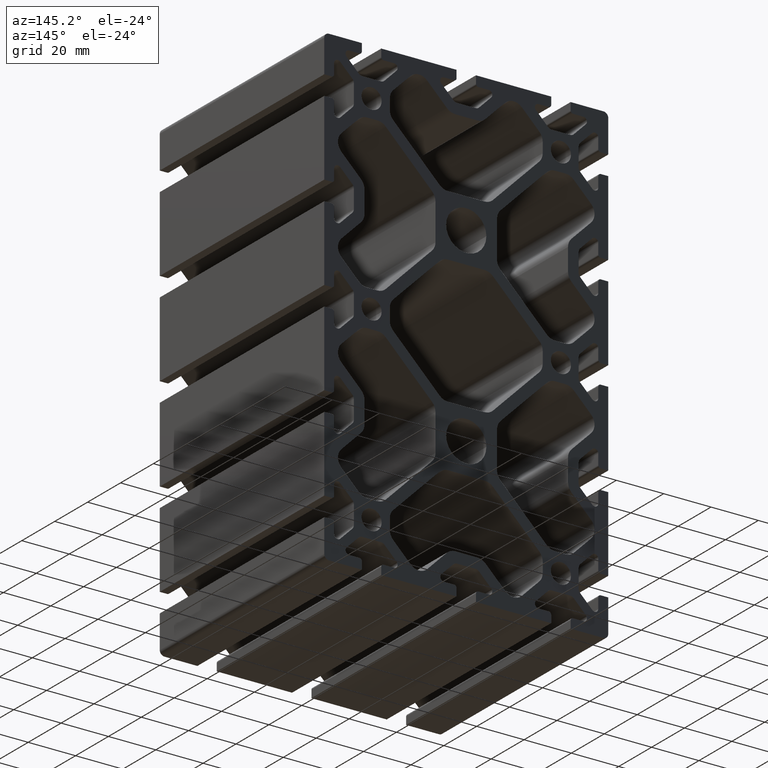
[diagram: clean part render]
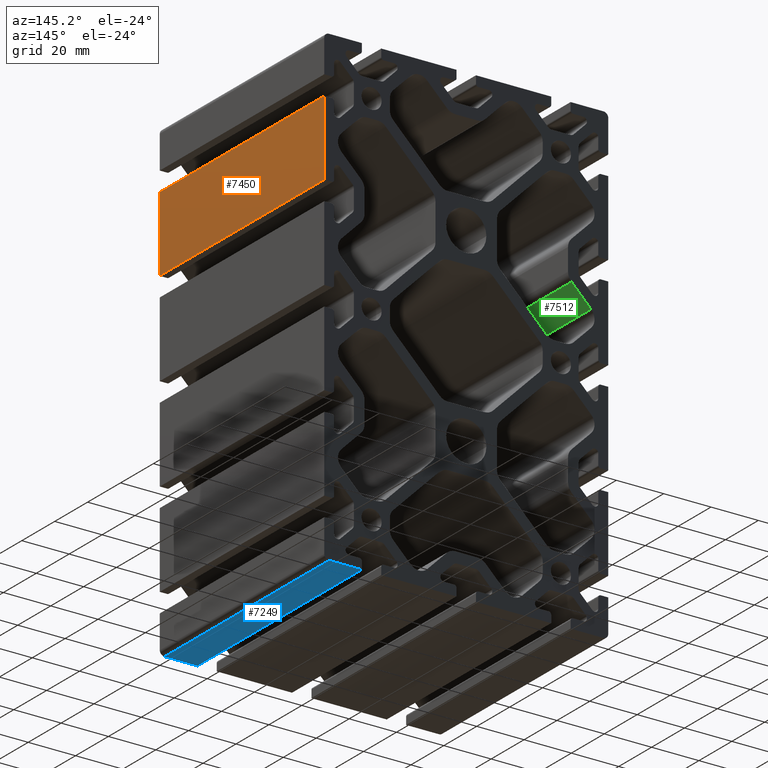
[diagram: same view with three faces highlighted in distinct colors, each labeled with its STEP entity id]
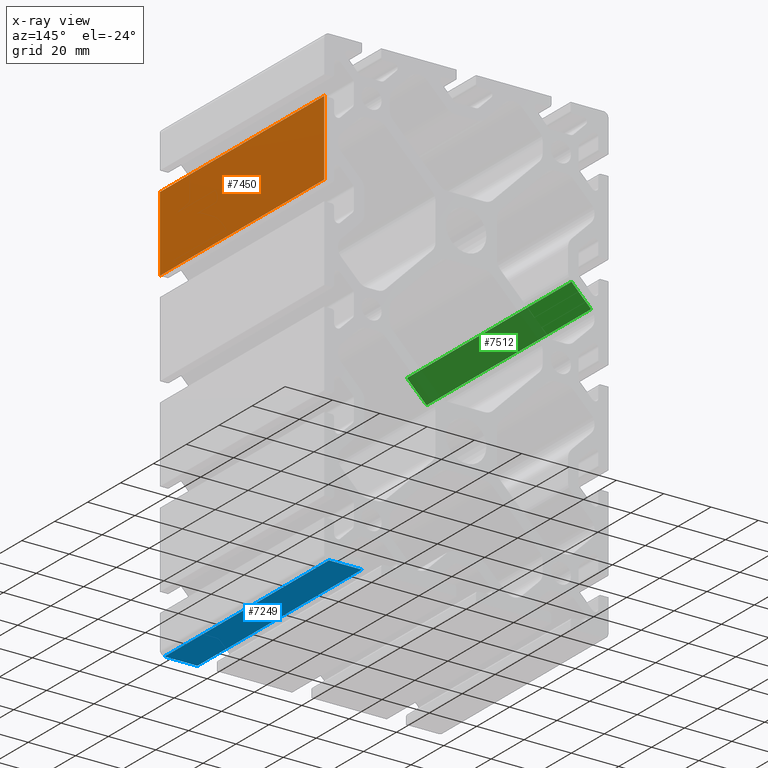
[diagram: x-ray of the same camera — body ghosted, the three highlighted faces saturated]
A machine part, auxiliary view with three faces highlighted in distinct colors.
The next image is the same camera in x-ray (body ghosted, the three faces saturated) — at least one of them is partly hidden behind the body in this view.
Their STEP definitions:

[orange] entity #7450 — the highlighted planar face has unit normal (-1, 0, 0).
#468=LINE('',#11916,#1236);
#470=LINE('',#11920,#1238);
#471=LINE('',#11922,#1239);
#472=LINE('',#11923,#1240);
#1236=VECTOR('',#9672,100.);
#1238=VECTOR('',#9676,31.8000000000001);
#1239=VECTOR('',#9677,100.);
#1240=VECTOR('',#9678,31.8000000000001);
#1668=PLANE('',#8046);
#2016=FACE_OUTER_BOUND('',#2401,.T.);
#2401=EDGE_LOOP('',(#5695,#5696,#5697,#5698));
#3391=VERTEX_POINT('',#11913);
#3392=VERTEX_POINT('',#11915);
#3393=VERTEX_POINT('',#11919);
#3394=VERTEX_POINT('',#11921);
#4358=EDGE_CURVE('',#3391,#3392,#468,.T.);
#4360=EDGE_CURVE('',#3393,#3391,#470,.T.);
#4361=EDGE_CURVE('',#3393,#3394,#471,.T.);
#4362=EDGE_CURVE('',#3394,#3392,#472,.T.);
#5695=ORIENTED_EDGE('',*,*,#4360,.F.);
#5696=ORIENTED_EDGE('',*,*,#4361,.T.);
#5697=ORIENTED_EDGE('',*,*,#4362,.T.);
#5698=ORIENTED_EDGE('',*,*,#4358,.F.);
#7450=ADVANCED_FACE('',(#2016),#1668,.F.);
#8046=AXIS2_PLACEMENT_3D('',#11918,#9674,#9675);
#9672=DIRECTION('',(0.,1.,0.));
#9674=DIRECTION('center_axis',(-1.,0.,1.1564151775607E-15));
#9675=DIRECTION('ref_axis',(1.4210854715202E-15,0.,1.));
#9676=DIRECTION('',(1.1564151775607E-15,0.,1.));
#9677=DIRECTION('',(0.,1.,0.));
#9678=DIRECTION('',(1.1564151775607E-15,0.,1.));
#11913=CARTESIAN_POINT('',(60.,0.,75.9));
#11915=CARTESIAN_POINT('',(60.,100.,75.9));
#11916=CARTESIAN_POINT('',(60.,0.,75.9));
#11918=CARTESIAN_POINT('Origin',(60.,0.,44.0999999999999));
#11919=CARTESIAN_POINT('',(60.,0.,44.0999999999999));
#11920=CARTESIAN_POINT('',(60.,0.,44.0999999999999));
#11921=CARTESIAN_POINT('',(60.,100.,44.0999999999999));
#11922=CARTESIAN_POINT('',(60.,0.,44.0999999999999));
#11923=CARTESIAN_POINT('',(60.,100.,44.0999999999999));

[blue] entity #7249 — the highlighted planar face has unit normal (-0, 0, -1).
#55=LINE('',#10709,#823);
#56=LINE('',#10711,#824);
#57=LINE('',#10713,#825);
#58=LINE('',#10714,#826);
#823=VECTOR('',#8483,13.9);
#824=VECTOR('',#8484,100.);
#825=VECTOR('',#8485,13.9);
#826=VECTOR('',#8486,100.);
#1561=PLANE('',#7657);
#1815=FACE_OUTER_BOUND('',#2197,.T.);
#2197=EDGE_LOOP('',(#4897,#4898,#4899,#4900));
#2985=VERTEX_POINT('',#10707);
#2986=VERTEX_POINT('',#10708);
#2987=VERTEX_POINT('',#10710);
#2988=VERTEX_POINT('',#10712);
#3757=EDGE_CURVE('',#2985,#2986,#55,.T.);
#3758=EDGE_CURVE('',#2986,#2987,#56,.T.);
#3759=EDGE_CURVE('',#2988,#2987,#57,.T.);
#3760=EDGE_CURVE('',#2985,#2988,#58,.T.);
#4897=ORIENTED_EDGE('',*,*,#3757,.T.);
#4898=ORIENTED_EDGE('',*,*,#3758,.T.);
#4899=ORIENTED_EDGE('',*,*,#3759,.F.);
#4900=ORIENTED_EDGE('',*,*,#3760,.F.);
#7249=ADVANCED_FACE('',(#1815),#1561,.T.);
#7657=AXIS2_PLACEMENT_3D('',#10706,#8481,#8482);
#8481=DIRECTION('center_axis',(-1.37429429060381E-15,0.,-1.));
#8482=DIRECTION('ref_axis',(-1.,0.,1.4210854715202E-15));
#8483=DIRECTION('',(-1.,0.,1.37429429060381E-15));
#8484=DIRECTION('',(0.,1.,0.));
#8485=DIRECTION('',(-1.,0.,1.37429429060381E-15));
#8486=DIRECTION('',(0.,1.,0.));
#10706=CARTESIAN_POINT('Origin',(57.9999999999999,0.,-100.));
#10707=CARTESIAN_POINT('',(57.9999999999999,0.,-100.));
#10708=CARTESIAN_POINT('',(44.0999999999999,0.,-100.));
#10709=CARTESIAN_POINT('',(57.9999999999999,0.,-100.));
#10710=CARTESIAN_POINT('',(44.0999999999999,100.,-100.));
#10711=CARTESIAN_POINT('',(44.0999999999999,0.,-100.));
#10712=CARTESIAN_POINT('',(57.9999999999999,100.,-100.));
#10713=CARTESIAN_POINT('',(57.9999999999999,100.,-100.));
#10714=CARTESIAN_POINT('',(57.9999999999999,0.,-100.));

[green] entity #7512 — the highlighted planar face has unit normal (-0.7071, 0, 0.7071).
#597=LINE('',#12290,#1365);
#598=LINE('',#12294,#1366);
#599=LINE('',#12296,#1367);
#600=LINE('',#12297,#1368);
#1365=VECTOR('',#10039,100.);
#1366=VECTOR('',#10044,11.708787847868);
#1367=VECTOR('',#10045,100.);
#1368=VECTOR('',#10046,11.708787847868);
#1701=PLANE('',#8166);
#2078=FACE_OUTER_BOUND('',#2464,.T.);
#2464=EDGE_LOOP('',(#5941,#5942,#5943,#5944));
#3517=VERTEX_POINT('',#12287);
#3518=VERTEX_POINT('',#12289);
#3519=VERTEX_POINT('',#12293);
#3520=VERTEX_POINT('',#12295);
#4544=EDGE_CURVE('',#3517,#3518,#597,.T.);
#4546=EDGE_CURVE('',#3519,#3517,#598,.T.);
#4547=EDGE_CURVE('',#3519,#3520,#599,.T.);
#4548=EDGE_CURVE('',#3518,#3520,#600,.T.);
#5941=ORIENTED_EDGE('',*,*,#4546,.F.);
#5942=ORIENTED_EDGE('',*,*,#4547,.T.);
#5943=ORIENTED_EDGE('',*,*,#4548,.F.);
#5944=ORIENTED_EDGE('',*,*,#4544,.F.);
#7512=ADVANCED_FACE('',(#2078),#1701,.F.);
#8166=AXIS2_PLACEMENT_3D('',#12292,#10042,#10043);
#10039=DIRECTION('',(0.,1.,0.));
#10042=DIRECTION('center_axis',(-0.707106781186547,0.,0.707106781186548));
#10043=DIRECTION('ref_axis',(0.707106781186548,0.,0.707106781186547));
#10044=DIRECTION('',(0.707106781186548,0.,0.707106781186547));
#10045=DIRECTION('',(0.,1.,0.));
#10046=DIRECTION('',(-0.707106781186548,0.,-0.707106781186547));
#12287=CARTESIAN_POINT('',(-44.4644660940672,0.,31.8148971926348));
#12289=CARTESIAN_POINT('',(-44.4644660940672,100.,31.8148971926348));
#12290=CARTESIAN_POINT('',(-44.4644660940672,0.,31.8148971926348));
#12292=CARTESIAN_POINT('Origin',(-52.7438293807693,0.,23.5355339059327));
#12293=CARTESIAN_POINT('',(-52.7438293807693,0.,23.5355339059327));
#12294=CARTESIAN_POINT('',(-39.2438844817388,0.,37.0354788049632));
#12295=CARTESIAN_POINT('',(-52.7438293807693,100.,23.5355339059327));
#12296=CARTESIAN_POINT('',(-52.7438293807693,0.,23.5355339059327));
#12297=CARTESIAN_POINT('',(-39.2438844817388,100.,37.0354788049632));